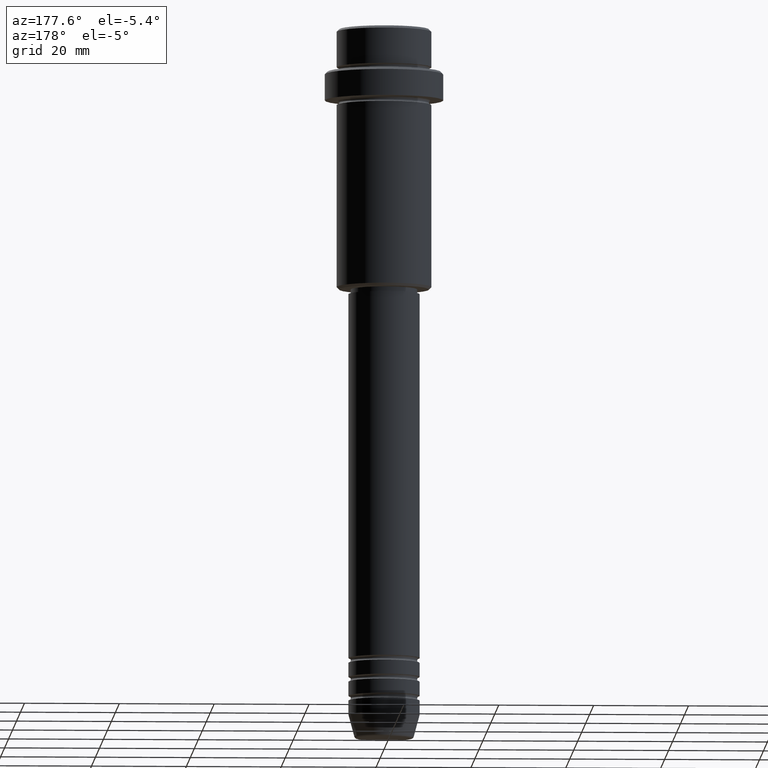
[diagram: clean part render]
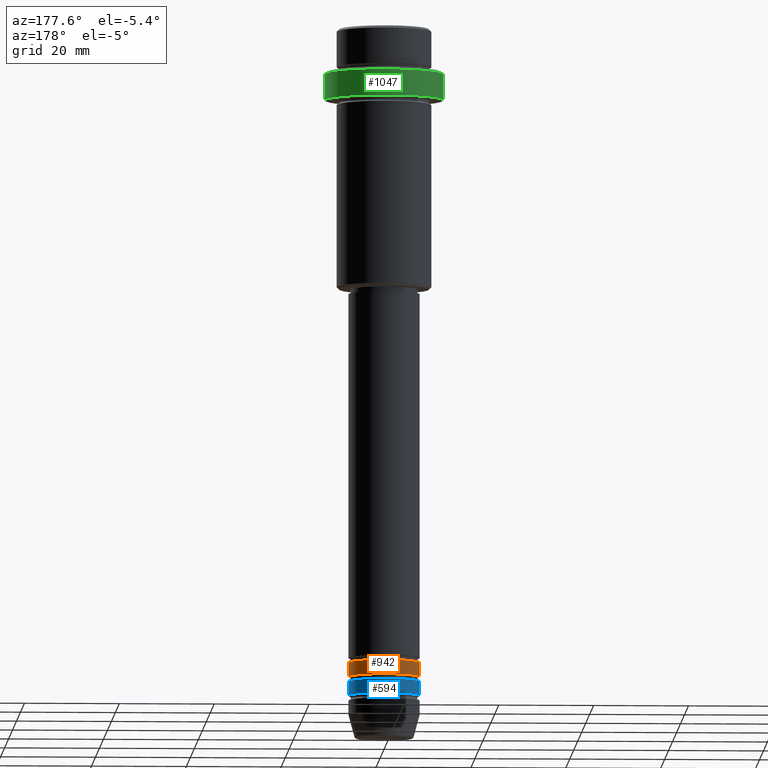
[diagram: same view with three faces highlighted in distinct colors, each labeled with its STEP entity id]
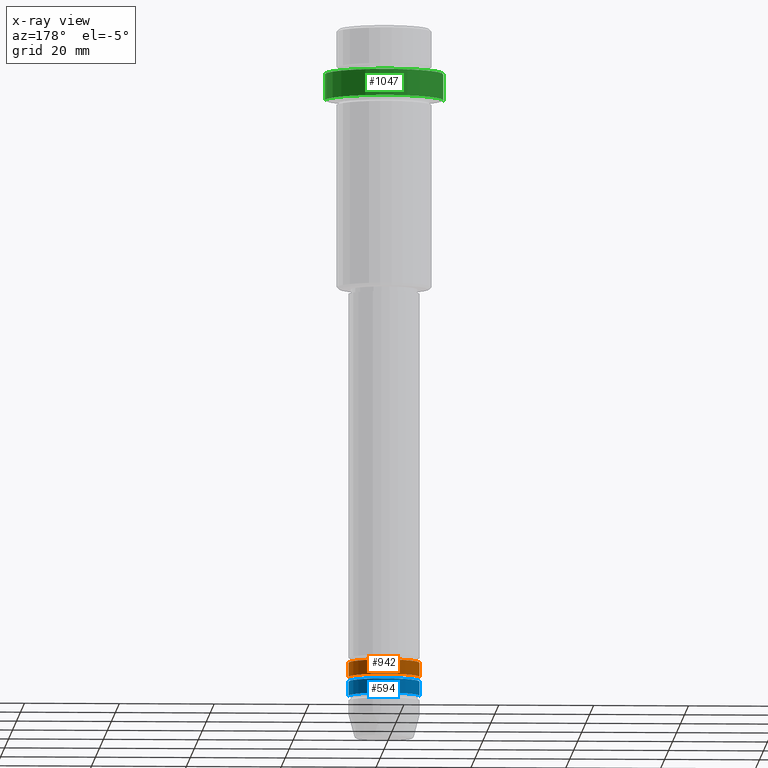
[diagram: x-ray of the same camera — body ghosted, the three highlighted faces saturated]
A machine part, auxiliary view with three faces highlighted in distinct colors.
The next image is the same camera in x-ray (body ghosted, the three faces saturated) — at least one of them is partly hidden behind the body in this view.
Their STEP definitions:

[orange] entity #942 — the highlighted cylindrical surface (edge-blend (fillet) strip) has radius 7.5 mm, axis along (-0, -0, 1).
#40 = EDGE_CURVE ( 'NONE', #754, #69, #1357, .T. ) ;
#47 = DIRECTION ( 'NONE',  ( -0.000000000000000000, -0.000000000000000000, 1.000000000000000000 ) ) ;
#69 = VERTEX_POINT ( 'NONE', #603 ) ;
#100 = LINE ( 'NONE', #1288, #949 ) ;
#176 = DIRECTION ( 'NONE',  ( -0.000000000000000000, -0.000000000000000000, 1.000000000000000000 ) ) ;
#249 = CARTESIAN_POINT ( 'NONE',  ( -7.500000000000000000, 9.184850993605147944E-16, -136.9999999999998579 ) ) ;
#255 = ORIENTED_EDGE ( 'NONE', *, *, #1035, .F. ) ;
#341 = DIRECTION ( 'NONE',  ( 1.000000000000000000, 0.000000000000000000, 0.000000000000000000 ) ) ;
#346 = EDGE_LOOP ( 'NONE', ( #439, #360, #1004, #255 ) ) ;
#360 = ORIENTED_EDGE ( 'NONE', *, *, #617, .T. ) ;
#366 = VERTEX_POINT ( 'NONE', #249 ) ;
#383 = CARTESIAN_POINT ( 'NONE',  ( 0.000000000000000000, 0.000000000000000000, -133.9999999999998579 ) ) ;
#406 = CARTESIAN_POINT ( 'NONE',  ( 7.500000000000000000, 0.000000000000000000, 0.000000000000000000 ) ) ;
#439 = ORIENTED_EDGE ( 'NONE', *, *, #772, .T. ) ;
#532 = DIRECTION ( 'NONE',  ( -0.000000000000000000, -0.000000000000000000, 1.000000000000000000 ) ) ;
#603 = CARTESIAN_POINT ( 'NONE',  ( -7.500000000000000000, 9.184850993605147944E-16, -133.9999999999998579 ) ) ;
#617 = EDGE_CURVE ( 'NONE', #366, #69, #100, .T. ) ;
#685 = CARTESIAN_POINT ( 'NONE',  ( 7.500000000000000000, 0.000000000000000000, -133.9999999999998579 ) ) ;
#694 = AXIS2_PLACEMENT_3D ( 'NONE', #875, #1215, #341 ) ;
#754 = VERTEX_POINT ( 'NONE', #685 ) ;
#772 = EDGE_CURVE ( 'NONE', #842, #366, #1061, .T. ) ;
#788 = VECTOR ( 'NONE', #532, 1000.000000000000000 ) ;
#842 = VERTEX_POINT ( 'NONE', #1150 ) ;
#875 = CARTESIAN_POINT ( 'NONE',  ( 0.000000000000000000, 0.000000000000000000, -136.9999999999998579 ) ) ;
#942 = ADVANCED_FACE ( 'NONE', ( #1346 ), #1130, .T. ) ;
#947 = DIRECTION ( 'NONE',  ( 1.000000000000000000, 0.000000000000000000, 0.000000000000000000 ) ) ;
#949 = VECTOR ( 'NONE', #1057, 1000.000000000000000 ) ;
#1004 = ORIENTED_EDGE ( 'NONE', *, *, #40, .F. ) ;
#1035 = EDGE_CURVE ( 'NONE', #842, #754, #1281, .T. ) ;
#1057 = DIRECTION ( 'NONE',  ( -0.000000000000000000, -0.000000000000000000, 1.000000000000000000 ) ) ;
#1061 = CIRCLE ( 'NONE', #694, 7.500000000000000000 ) ;
#1130 = CYLINDRICAL_SURFACE ( 'NONE', #1251, 7.500000000000000000 ) ;
#1137 = DIRECTION ( 'NONE',  ( 1.000000000000000000, 0.000000000000000000, 0.000000000000000000 ) ) ;
#1145 = CARTESIAN_POINT ( 'NONE',  ( 0.000000000000000000, 0.000000000000000000, 0.000000000000000000 ) ) ;
#1150 = CARTESIAN_POINT ( 'NONE',  ( 7.500000000000000000, 0.000000000000000000, -136.9999999999998579 ) ) ;
#1194 = AXIS2_PLACEMENT_3D ( 'NONE', #383, #47, #947 ) ;
#1215 = DIRECTION ( 'NONE',  ( -0.000000000000000000, -0.000000000000000000, 1.000000000000000000 ) ) ;
#1251 = AXIS2_PLACEMENT_3D ( 'NONE', #1145, #176, #1137 ) ;
#1281 = LINE ( 'NONE', #406, #788 ) ;
#1288 = CARTESIAN_POINT ( 'NONE',  ( -7.500000000000000000, 9.184850993605147944E-16, 0.000000000000000000 ) ) ;
#1346 = FACE_OUTER_BOUND ( 'NONE', #346, .T. ) ;
#1357 = CIRCLE ( 'NONE', #1194, 7.500000000000000000 ) ;

[blue] entity #594 — the highlighted cylindrical surface (edge-blend (fillet) strip) has radius 7.5 mm, axis along (-0, -0, 1).
#28 = EDGE_LOOP ( 'NONE', ( #714, #450, #347, #991 ) ) ;
#31 = EDGE_CURVE ( 'NONE', #1401, #73, #295, .T. ) ;
#51 = EDGE_CURVE ( 'NONE', #962, #1401, #458, .T. ) ;
#73 = VERTEX_POINT ( 'NONE', #373 ) ;
#75 = CARTESIAN_POINT ( 'NONE',  ( 0.000000000000000000, 0.000000000000000000, -140.9999999999998579 ) ) ;
#155 = DIRECTION ( 'NONE',  ( 1.000000000000000000, 0.000000000000000000, 0.000000000000000000 ) ) ;
#206 = CYLINDRICAL_SURFACE ( 'NONE', #241, 7.500000000000000000 ) ;
#241 = AXIS2_PLACEMENT_3D ( 'NONE', #648, #424, #320 ) ;
#295 = LINE ( 'NONE', #1155, #434 ) ;
#320 = DIRECTION ( 'NONE',  ( 1.000000000000000000, 0.000000000000000000, 0.000000000000000000 ) ) ;
#347 = ORIENTED_EDGE ( 'NONE', *, *, #1363, .F. ) ;
#357 = DIRECTION ( 'NONE',  ( -0.000000000000000000, -0.000000000000000000, 1.000000000000000000 ) ) ;
#373 = CARTESIAN_POINT ( 'NONE',  ( -7.500000000000000000, 9.184850993605147944E-16, -137.9999999999998863 ) ) ;
#424 = DIRECTION ( 'NONE',  ( -0.000000000000000000, -0.000000000000000000, 1.000000000000000000 ) ) ;
#433 = LINE ( 'NONE', #1116, #952 ) ;
#434 = VECTOR ( 'NONE', #1279, 1000.000000000000000 ) ;
#450 = ORIENTED_EDGE ( 'NONE', *, *, #31, .T. ) ;
#457 = CARTESIAN_POINT ( 'NONE',  ( 7.500000000000000000, 0.000000000000000000, -137.9999999999998863 ) ) ;
#458 = CIRCLE ( 'NONE', #1149, 7.500000000000000000 ) ;
#487 = CARTESIAN_POINT ( 'NONE',  ( -7.500000000000000000, 9.184850993605147944E-16, -140.9999999999998579 ) ) ;
#502 = DIRECTION ( 'NONE',  ( -0.000000000000000000, -0.000000000000000000, 1.000000000000000000 ) ) ;
#593 = DIRECTION ( 'NONE',  ( -0.000000000000000000, -0.000000000000000000, 1.000000000000000000 ) ) ;
#594 = ADVANCED_FACE ( 'NONE', ( #844 ), #206, .T. ) ;
#648 = CARTESIAN_POINT ( 'NONE',  ( 0.000000000000000000, 0.000000000000000000, 0.000000000000000000 ) ) ;
#690 = CARTESIAN_POINT ( 'NONE',  ( 7.500000000000000000, 0.000000000000000000, -140.9999999999998579 ) ) ;
#692 = AXIS2_PLACEMENT_3D ( 'NONE', #1345, #593, #155 ) ;
#709 = DIRECTION ( 'NONE',  ( 1.000000000000000000, 0.000000000000000000, 0.000000000000000000 ) ) ;
#714 = ORIENTED_EDGE ( 'NONE', *, *, #51, .T. ) ;
#781 = VERTEX_POINT ( 'NONE', #457 ) ;
#844 = FACE_OUTER_BOUND ( 'NONE', #28, .T. ) ;
#952 = VECTOR ( 'NONE', #357, 1000.000000000000000 ) ;
#962 = VERTEX_POINT ( 'NONE', #690 ) ;
#991 = ORIENTED_EDGE ( 'NONE', *, *, #1134, .F. ) ;
#1116 = CARTESIAN_POINT ( 'NONE',  ( 7.500000000000000000, 0.000000000000000000, 0.000000000000000000 ) ) ;
#1134 = EDGE_CURVE ( 'NONE', #962, #781, #433, .T. ) ;
#1149 = AXIS2_PLACEMENT_3D ( 'NONE', #75, #502, #709 ) ;
#1155 = CARTESIAN_POINT ( 'NONE',  ( -7.500000000000000000, 9.184850993605147944E-16, 0.000000000000000000 ) ) ;
#1279 = DIRECTION ( 'NONE',  ( -0.000000000000000000, -0.000000000000000000, 1.000000000000000000 ) ) ;
#1310 = CIRCLE ( 'NONE', #692, 7.500000000000000000 ) ;
#1345 = CARTESIAN_POINT ( 'NONE',  ( 0.000000000000000000, 0.000000000000000000, -137.9999999999998863 ) ) ;
#1363 = EDGE_CURVE ( 'NONE', #781, #73, #1310, .T. ) ;
#1401 = VERTEX_POINT ( 'NONE', #487 ) ;

[green] entity #1047 — the highlighted cylindrical surface (partial cylindrical patch) has radius 12.5 mm, axis along (-0, -0, 1).
#2 = DIRECTION ( 'NONE',  ( 1.000000000000000000, 0.000000000000000000, 0.000000000000000000 ) ) ;
#32 = ORIENTED_EDGE ( 'NONE', *, *, #1232, .T. ) ;
#109 = CARTESIAN_POINT ( 'NONE',  ( -12.50000000000000000, 1.530808498934191521E-15, -9.499999999999952038 ) ) ;
#130 = CARTESIAN_POINT ( 'NONE',  ( 0.000000000000000000, 0.000000000000000000, -15.00000000000000178 ) ) ;
#136 = CARTESIAN_POINT ( 'NONE',  ( 12.50000000000000000, 0.000000000000000000, -15.00000000000000178 ) ) ;
#144 = CARTESIAN_POINT ( 'NONE',  ( -12.50000000000000000, 1.530808498934191521E-15, 0.000000000000000000 ) ) ;
#167 = VERTEX_POINT ( 'NONE', #746 ) ;
#210 = EDGE_CURVE ( 'NONE', #1230, #167, #880, .T. ) ;
#272 = DIRECTION ( 'NONE',  ( -0.000000000000000000, -0.000000000000000000, 1.000000000000000000 ) ) ;
#290 = ORIENTED_EDGE ( 'NONE', *, *, #379, .T. ) ;
#303 = ORIENTED_EDGE ( 'NONE', *, *, #932, .F. ) ;
#305 = CYLINDRICAL_SURFACE ( 'NONE', #928, 12.50000000000000000 ) ;
#321 = DIRECTION ( 'NONE',  ( 1.000000000000000000, 0.000000000000000000, 0.000000000000000000 ) ) ;
#342 = LINE ( 'NONE', #144, #1311 ) ;
#377 = LINE ( 'NONE', #1351, #442 ) ;
#379 = EDGE_CURVE ( 'NONE', #644, #1230, #342, .T. ) ;
#442 = VECTOR ( 'NONE', #272, 1000.000000000000000 ) ;
#444 = AXIS2_PLACEMENT_3D ( 'NONE', #130, #452, #2 ) ;
#452 = DIRECTION ( 'NONE',  ( -0.000000000000000000, -0.000000000000000000, 1.000000000000000000 ) ) ;
#504 = AXIS2_PLACEMENT_3D ( 'NONE', #513, #1304, #321 ) ;
#509 = FACE_OUTER_BOUND ( 'NONE', #1087, .T. ) ;
#513 = CARTESIAN_POINT ( 'NONE',  ( 0.000000000000000000, 0.000000000000000000, -9.499999999999952038 ) ) ;
#546 = ORIENTED_EDGE ( 'NONE', *, *, #210, .T. ) ;
#644 = VERTEX_POINT ( 'NONE', #1394 ) ;
#729 = VERTEX_POINT ( 'NONE', #136 ) ;
#746 = CARTESIAN_POINT ( 'NONE',  ( 12.50000000000000000, 0.000000000000000000, -9.499999999999952038 ) ) ;
#861 = CARTESIAN_POINT ( 'NONE',  ( 0.000000000000000000, 0.000000000000000000, 0.000000000000000000 ) ) ;
#880 = CIRCLE ( 'NONE', #504, 12.50000000000000000 ) ;
#888 = DIRECTION ( 'NONE',  ( -0.000000000000000000, -0.000000000000000000, 1.000000000000000000 ) ) ;
#928 = AXIS2_PLACEMENT_3D ( 'NONE', #861, #1296, #1301 ) ;
#932 = EDGE_CURVE ( 'NONE', #729, #167, #377, .T. ) ;
#1020 = CIRCLE ( 'NONE', #444, 12.50000000000000000 ) ;
#1047 = ADVANCED_FACE ( 'NONE', ( #509 ), #305, .T. ) ;
#1087 = EDGE_LOOP ( 'NONE', ( #32, #290, #546, #303 ) ) ;
#1230 = VERTEX_POINT ( 'NONE', #109 ) ;
#1232 = EDGE_CURVE ( 'NONE', #729, #644, #1020, .T. ) ;
#1296 = DIRECTION ( 'NONE',  ( -0.000000000000000000, -0.000000000000000000, 1.000000000000000000 ) ) ;
#1301 = DIRECTION ( 'NONE',  ( 1.000000000000000000, 0.000000000000000000, 0.000000000000000000 ) ) ;
#1304 = DIRECTION ( 'NONE',  ( 0.000000000000000000, 0.000000000000000000, -1.000000000000000000 ) ) ;
#1311 = VECTOR ( 'NONE', #888, 1000.000000000000000 ) ;
#1351 = CARTESIAN_POINT ( 'NONE',  ( 12.50000000000000000, 0.000000000000000000, 0.000000000000000000 ) ) ;
#1394 = CARTESIAN_POINT ( 'NONE',  ( -12.50000000000000000, 1.530808498934191521E-15, -15.00000000000000178 ) ) ;